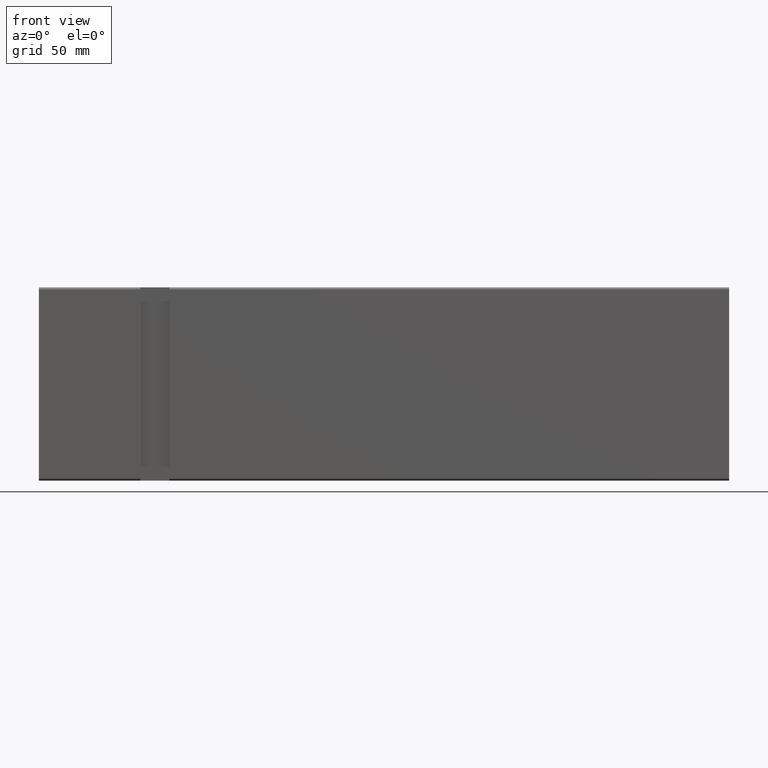
[diagram: clean part render]
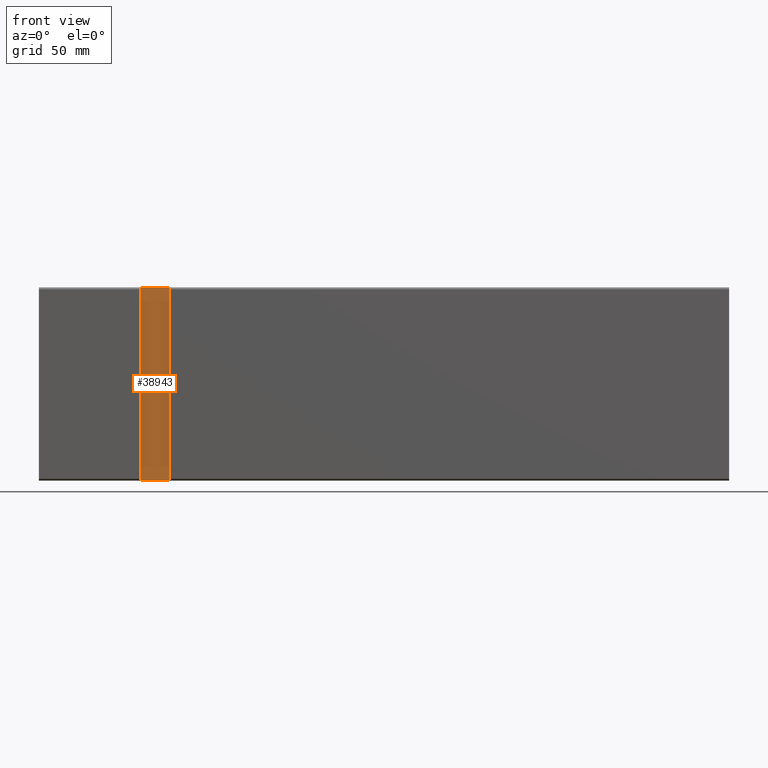
[diagram: same view with one face highlighted and labeled with its STEP entity id]
A machine part, front view. The second image highlights one B-rep face of the part: STEP entity #38943.
In plain terms, the highlighted planar face has unit normal (0, -1, 0).
Its self-contained STEP definition (entity closure, byte-faithful):
#666 = CARTESIAN_POINT ( 'NONE',  ( 67.50000000000000000, -35.50000000000001421, 49.99999999999998579 ) ) ;
#1468 = VERTEX_POINT ( 'NONE', #14280 ) ;
#2821 = ORIENTED_EDGE ( 'NONE', *, *, #11689, .T. ) ;
#3843 = CARTESIAN_POINT ( 'NONE',  ( 52.49999999999999289, -35.50000000000001421, 49.99999999999998579 ) ) ;
#4703 = ORIENTED_EDGE ( 'NONE', *, *, #13847, .T. ) ;
#7509 = EDGE_CURVE ( 'NONE', #14860, #14444, #9758, .T. ) ;
#8390 = AXIS2_PLACEMENT_3D ( 'NONE', #12296, #15252, #40771 ) ;
#9343 = VECTOR ( 'NONE', #20962, 1000.000000000000000 ) ;
#9615 = CARTESIAN_POINT ( 'NONE',  ( 52.49999999999999289, -35.50000000000001421, 49.99999999999998579 ) ) ;
#9619 = DIRECTION ( 'NONE',  ( -1.387778780781445922E-16, -0.000000000000000000, 1.000000000000000000 ) ) ;
#9758 = LINE ( 'NONE', #3843, #32825 ) ;
#11561 = VECTOR ( 'NONE', #9619, 1000.000000000000000 ) ;
#11689 = EDGE_CURVE ( 'NONE', #21188, #1468, #14024, .T. ) ;
#12296 = CARTESIAN_POINT ( 'NONE',  ( 0.000000000000000000, -35.50000000000001421, 1.101411730778925047E-16 ) ) ;
#13847 = EDGE_CURVE ( 'NONE', #14444, #21188, #31970, .T. ) ;
#14024 = LINE ( 'NONE', #27503, #9343 ) ;
#14280 = CARTESIAN_POINT ( 'NONE',  ( 67.50000000000001421, -35.50000000000001421, -50.00000000000000000 ) ) ;
#14444 = VERTEX_POINT ( 'NONE', #35132 ) ;
#14860 = VERTEX_POINT ( 'NONE', #666 ) ;
#15252 = DIRECTION ( 'NONE',  ( 0.000000000000000000, -1.000000000000000000, 0.000000000000000000 ) ) ;
#15484 = VECTOR ( 'NONE', #35352, 1000.000000000000000 ) ;
#15750 = LINE ( 'NONE', #38315, #11561 ) ;
#16920 = ORIENTED_EDGE ( 'NONE', *, *, #7509, .T. ) ;
#20962 = DIRECTION ( 'NONE',  ( 1.000000000000000000, 0.000000000000000000, 0.000000000000000000 ) ) ;
#21188 = VERTEX_POINT ( 'NONE', #40475 ) ;
#23545 = EDGE_CURVE ( 'NONE', #1468, #14860, #15750, .T. ) ;
#24524 = PLANE ( 'NONE',  #8390 ) ;
#25099 = ORIENTED_EDGE ( 'NONE', *, *, #23545, .T. ) ;
#27503 = CARTESIAN_POINT ( 'NONE',  ( 52.50000000000000711, -35.50000000000001421, -50.00000000000000000 ) ) ;
#31970 = LINE ( 'NONE', #9615, #15484 ) ;
#32825 = VECTOR ( 'NONE', #35914, 1000.000000000000000 ) ;
#35132 = CARTESIAN_POINT ( 'NONE',  ( 52.49999999999999289, -35.50000000000001421, 49.99999999999998579 ) ) ;
#35352 = DIRECTION ( 'NONE',  ( 1.387778780781445922E-16, 0.000000000000000000, -1.000000000000000000 ) ) ;
#35914 = DIRECTION ( 'NONE',  ( -1.000000000000000000, -0.000000000000000000, -0.000000000000000000 ) ) ;
#37486 = EDGE_LOOP ( 'NONE', ( #25099, #16920, #4703, #2821 ) ) ;
#38315 = CARTESIAN_POINT ( 'NONE',  ( 67.50000000000000000, -35.50000000000001421, 49.99999999999998579 ) ) ;
#38943 = ADVANCED_FACE ( 'NONE', ( #41198 ), #24524, .T. ) ;
#40475 = CARTESIAN_POINT ( 'NONE',  ( 52.50000000000000711, -35.50000000000001421, -50.00000000000000000 ) ) ;
#40771 = DIRECTION ( 'NONE',  ( 0.000000000000000000, -0.000000000000000000, -1.000000000000000000 ) ) ;
#41198 = FACE_OUTER_BOUND ( 'NONE', #37486, .T. ) ;